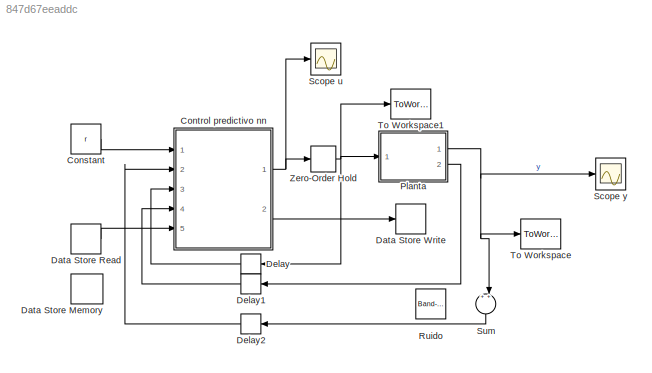
MODEL slx_847d67eeaddc
KIND model
CONFIG AbsTol = auto
CONFIG EnableMultiTasking = off
CONFIG FixedStep = auto
CONFIG MaxStep = auto
CONFIG MinStep = auto
CONFIG RelTol = 1e-3
CONFIG SampleTimeConstraint = Unconstrained
CONFIG SolverName = ode45
CONFIG StartTime = 0
CONFIG StopTime = Tf
WORKSPACE source: mxarray member
WORKSPACE y0 = 3.14259265359
BLOCK [Constant] Constant
  Value = r
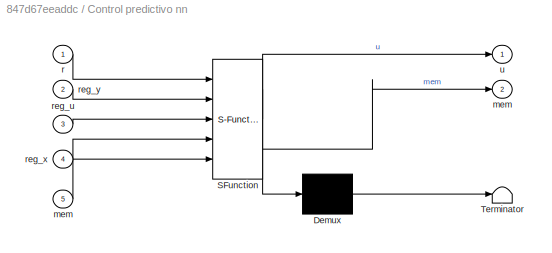
BLOCK [SubSystem] Control predictivo nn
  ErrorFcn = Stateflow.Translate.translate
  NameLocation = top
  PermitHierarchicalResolution = ExplicitOnly
  Ports = [5, 2]
  RequestExecContextInheritance = off
  SFBlockType = MATLAB Function
  TreatAsAtomicUnit = on
BLOCK [Demux] Control predictivo nn/ Demux 
  Outputs = 1
  Ports = [1, 1]
BLOCK [S-Function] Control predictivo nn/ SFunction 
  EnableBusSupport = on
  FunctionName = sf_sfun
  PortCounts = [5 3]
  Ports = [5, 3]
  SFcnIsStateOwnerBlock = off
  SFunctionDeploymentMode = off
  Tag = Stateflow S-Function 2
BLOCK [Terminator] Control predictivo nn/ Terminator 
BLOCK [Outport] Control predictivo nn/mem
  Port = 2
BLOCK [Inport] Control predictivo nn/mem 
  Port = 5
BLOCK [Inport] Control predictivo nn/r
BLOCK [Inport] Control predictivo nn/reg_u
  Port = 3
BLOCK [Inport] Control predictivo nn/reg_x
  Port = 4
BLOCK [Inport] Control predictivo nn/reg_y
  Port = 2
BLOCK [Outport] Control predictivo nn/u
BLOCK [DataStoreMemory] Data Store Memory
  DataStoreName = mem
  Dimensions = [3 60]
  ReadBeforeWriteMsg = warning
  ShowAdditionalParam = off
  WriteAfterReadMsg = warning
  WriteAfterWriteMsg = warning
BLOCK [DataStoreRead] Data Store Read
  DataStoreElements = mem
  DataStoreName = mem
  IndexOptions = Index vector (dialog)
  Indices = 1
  OutputSizes = 1
  Ports = [0, 1]
BLOCK [DataStoreWrite] Data Store Write
  DataStoreName = mem
  IndexOptions = Index vector (dialog)
  Indices = 1
  OutputSizes = 1
  Ports = [1]
BLOCK [Delay] Delay
  DelayLength = 1
  InputPortMap = u0
  NameLocation = top
  Ports = [1, 1]
BLOCK [Delay] Delay1
  DelayLength = 1
  InputPortMap = u0
  NameLocation = top
  Ports = [1, 1]
BLOCK [Delay] Delay2
  DelayLength = 1
  InputPortMap = u0
  NameLocation = top
  Ports = [1, 1]
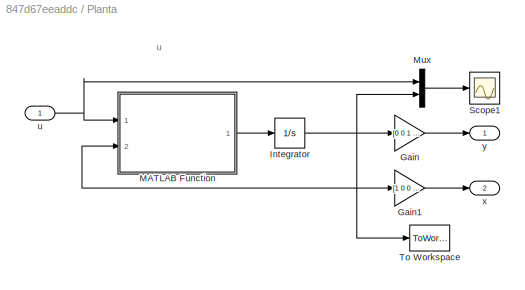
BLOCK [SubSystem] Planta
  Ports = [1, 2]
  RequestExecContextInheritance = off
BLOCK [Gain] Planta/Gain
  Gain = [0 0 1 0]
  Multiplication = Matrix(K*u)
BLOCK [Gain] Planta/Gain1
  Gain = [1 0 0 0]
  Multiplication = Matrix(K*u)
BLOCK [Integrator] Planta/Integrator
  InitialCondition = x0
  Ports = [1, 1]
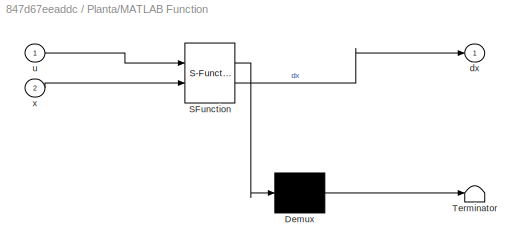
BLOCK [SubSystem] Planta/MATLAB Function
  ErrorFcn = Stateflow.Translate.translate
  PermitHierarchicalResolution = ExplicitOnly
  Ports = [2, 1]
  RequestExecContextInheritance = off
  SFBlockType = MATLAB Function
  TreatAsAtomicUnit = on
BLOCK [Demux] Planta/MATLAB Function/ Demux 
  Outputs = 1
  Ports = [1, 1]
BLOCK [S-Function] Planta/MATLAB Function/ SFunction 
  EnableBusSupport = on
  FunctionName = sf_sfun
  PortCounts = [2 2]
  Ports = [2, 2]
  SFcnIsStateOwnerBlock = off
  SFunctionDeploymentMode = off
  Tag = Stateflow S-Function 1
BLOCK [Terminator] Planta/MATLAB Function/ Terminator 
BLOCK [Outport] Planta/MATLAB Function/dx
BLOCK [Inport] Planta/MATLAB Function/u
BLOCK [Inport] Planta/MATLAB Function/x
  Port = 2
BLOCK [Mux] Planta/Mux
  DisplayOption = bar
  Inputs = 2
  Ports = [2, 1]
BLOCK [Scope] Planta/Scope1
  Floating = off
  NumInputPorts = 1
  Ports = [1]
  ScopeSpecificationString = Simulink.scopes.TimeScopeBlockCfg('CurrentConfiguration', extmgr.ConfigurationSet(extmgr.Configuration('Core','General UI',true),extmgr.Configuration('Core','Source UI',true),extmgr.Configuration('Sources','WiredSimulink',true,'DataLoggingVariableName','ScopeData1','DataLoggingSaveFormat','StructureWithTime','DataLoggingLimitDataPoints',true,'DataLoggingDecimation','1','DataLoggingDecimateData',tr...<+1819ch>
BLOCK [ToWorkspace] Planta/To Workspace
  FixptAsFi = on
  MaxDataPoints = inf
  Ports = [1]
  SampleTime = -1
  VariableName = x
BLOCK [Inport] Planta/u
BLOCK [Outport] Planta/x
  Port = 2
BLOCK [Outport] Planta/y
BLOCK [Reference] Ruido  REF=simulink/Sources/Band-Limited
White Noise
  NameLocation = left
  Ports = [0, 1]
  SourceBlock = simulink/Sources/Band-Limited\nWhite Noise
  SourceProductBaseCode = SL
  SourceType = Band-Limited White Noise.
BLOCK [Scope] Scope u
  Floating = off
  NumInputPorts = 1
  Ports = [1]
  ScopeSpecificationString = Simulink.scopes.TimeScopeBlockCfg('CurrentConfiguration', extmgr.ConfigurationSet(extmgr.Configuration('Core','General UI',true),extmgr.Configuration('Core','Source UI',true),extmgr.Configuration('Sources','WiredSimulink',true,'DataLoggingVariableName','ScopeData1'),extmgr.Configuration('Visuals','Time Domain',true,'SerializedDisplays',{struct('MinYLimReal','-61.90129','MaxYLimReal','62.02123','YL...<+1442ch>
BLOCK [Scope] Scope y
  Floating = off
  NumInputPorts = 1
  Ports = [1]
  ScopeSpecificationString = Simulink.scopes.TimeScopeBlockCfg('CurrentConfiguration', extmgr.ConfigurationSet(extmgr.Configuration('Core','General UI',true),extmgr.Configuration('Core','Source UI',true),extmgr.Configuration('Sources','WiredSimulink',true,'DataLoggingVariableName','ScopeData1'),extmgr.Configuration('Visuals','Time Domain',true,'SerializedDisplays',{struct('MinYLimReal','-18.36249','MaxYLimReal','13.82898','YL...<+1461ch>
BLOCK [Sum] Sum
  Inputs = ++|
  NameLocation = right
  Ports = [2, 1]
BLOCK [ToWorkspace] To Workspace
  FixptAsFi = on
  MaxDataPoints = inf
  Ports = [1]
  SampleTime = -1
  VariableName = y
BLOCK [ToWorkspace] To Workspace1
  FixptAsFi = on
  MaxDataPoints = inf
  Ports = [1]
  SampleTime = -1
  VariableName = u
BLOCK [ZeroOrderHold] Zero-Order Hold
  SampleTime = Ts
ANNOTATION Planta: u
LINE Constant:1 -> Control predictivo nn:1
NET Control predictivo nn:1 -> Scope u:1, Zero-Order Hold:1
LINE Control predictivo nn:2 -> Data Store Write:1
LINE Data Store Read:1 -> Control predictivo nn:5
LINE Delay1:1 -> Control predictivo nn:4
LINE Delay2:1 -> Control predictivo nn:2
LINE Delay:1 -> Control predictivo nn:3
LINE Planta/Gain1:1 -> Planta/x:1
LINE Planta/Gain:1 -> Planta/y:1
NET Planta/Integrator:1 -> Planta/Gain1:1, Planta/Gain:1, Planta/MATLAB Function:2, Planta/Mux:2, Planta/To Workspace:1
LINE Planta/MATLAB Function:1 -> Planta/Integrator:1
LINE Planta/Mux:1 -> Planta/Scope1:1
NET Planta/u:1 -> Planta/MATLAB Function:1, Planta/Mux:1
NET Planta:1 -> Scope y:1, Sum:2, To Workspace:1
LINE Planta:2 -> Delay1:1
LINE Sum:1 -> Delay2:1
NET Zero-Order Hold:1 -> Delay:1, Planta:1, To Workspace1:1
note: NET lines group one-source signal fan-out (src -> all destinations, sorted); 1:1 wires keep LINE
CHART Planta/MATLAB Function states=1 transitions=1
  STATE_LABEL 'eML_blk_kernel()'
  STATE_LABEL 'SCRIPT:\nfunction dx = pendcart(u,x)\n%x=[x,dx,theta,dtheta]\nm = 1;\nM = 5;\nL = 2;\ng = -9.8;\nd = 1;\n\nSx = sin(x(3));\nCx = cos(x(3));\nD = L*(M+m*(1-Cx^2));\n\ndx=[x(2);(1/D)*(-m*L*g*Cx*Sx + L*(m*L*x(4)^2*Sx - d*x(2)) + L*u);...\n    x(4);(1/D)*((m+M)*g*Sx - Cx*(m*L*x(4)^2*Sx - d*x(2)) - Cx*u)];\nend'
CHART Control predictivo nn states=1 transitions=1
  STATE_LABEL 'eML_blk_kernel()'
  STATE_LABEL "SCRIPT:\nfunction [u, mem] = control(r,reg_y,reg_u,reg_x,mem)\nn = 3;\nnet_theta=load('net_theta_ch.mat', 'net_theta');\nnet_pos=load('net_pos.mat', 'net_pos');\n% yprev = [y(k-1), y(k-2), ..., y(k-nreg)]\n% uprev = [u(k-1), u(k-2), ..., u(k-nreg)]\n% xprev = [x(k-1), x(k-2), ..., x(k-nreg)]\n% mem = [yprev; uprev; xprev]\ncoder.extrinsic('control_predictivo_nn')\nmodelx = net_pos.net_pos;\nmodely = net_thet...<+231ch>"
CHART  states=0 transitions=0
CHART  states=0 transitions=0
